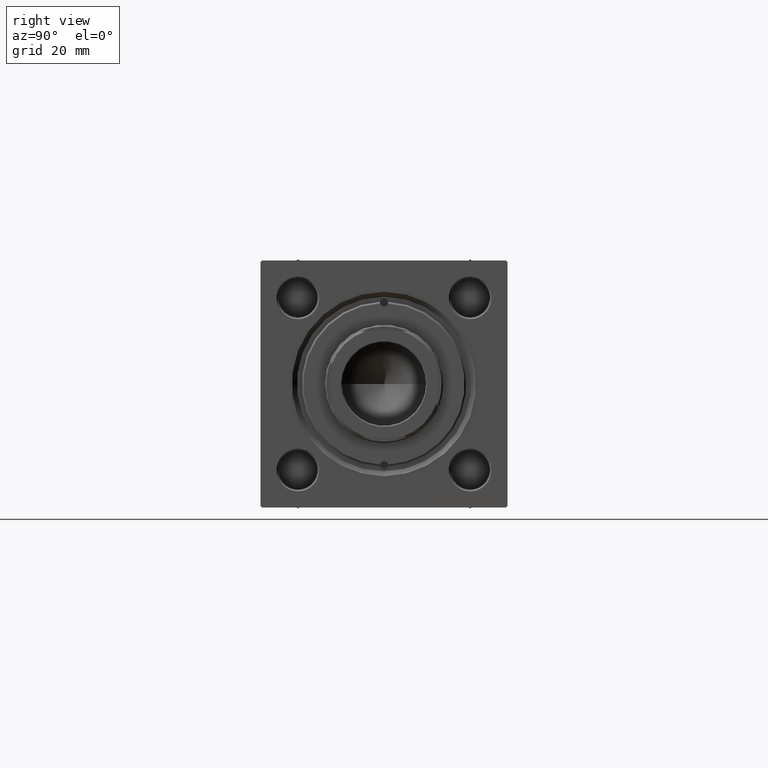
[diagram: clean part render]
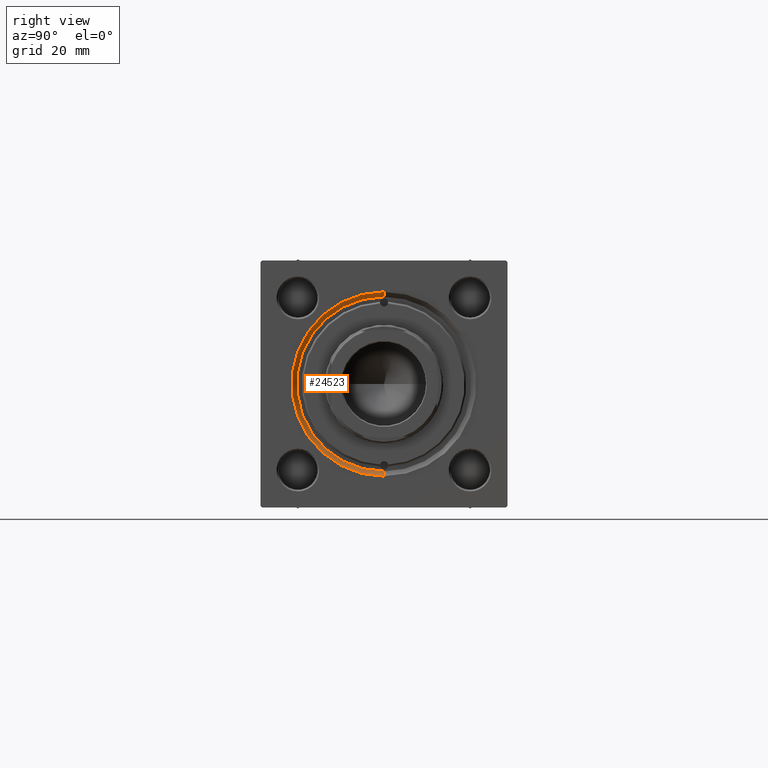
[diagram: same view with one face highlighted and labeled with its STEP entity id]
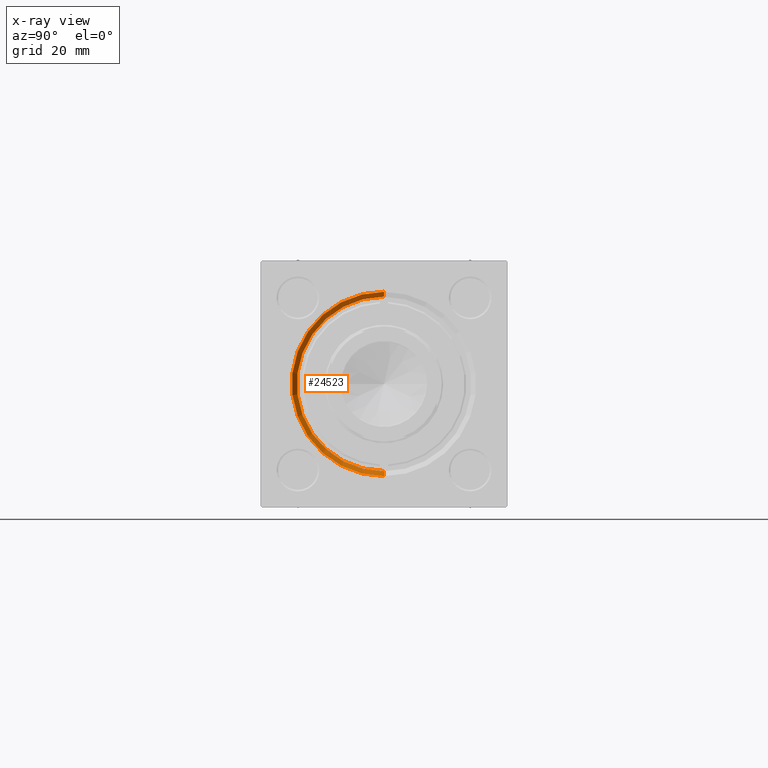
[diagram: x-ray of the same camera — body ghosted, the highlighted face saturated]
A machine part, right view. The second image highlights one B-rep face of the part: STEP entity #24523.
The next image is the same camera in x-ray: the body ghosted, the highlighted face saturated — about 0% of this face is hidden behind the body in this view.
In plain terms, the highlighted conical surface has half-angle 45 deg.
Its self-contained STEP definition (entity closure, byte-faithful):
#752 = EDGE_CURVE ( 'NONE', #27300, #35299, #3754, .T. ) ;
#2752 = EDGE_CURVE ( 'NONE', #3470, #35299, #39122, .T. ) ;
#3470 = VERTEX_POINT ( 'NONE', #42849 ) ;
#3754 = LINE ( 'NONE', #11887, #38248 ) ;
#5359 = CARTESIAN_POINT ( 'NONE',  ( 152.5000000000000568, 0.000000000000000000, 0.000000000000000000 ) ) ;
#6174 = AXIS2_PLACEMENT_3D ( 'NONE', #14530, #11210, #30107 ) ;
#9424 = DIRECTION ( 'NONE',  ( 1.000000000000000000, 0.000000000000000000, 0.000000000000000000 ) ) ;
#10391 = DIRECTION ( 'NONE',  ( 0.000000000000000000, 0.000000000000000000, 1.000000000000000000 ) ) ;
#11210 = DIRECTION ( 'NONE',  ( 1.000000000000000000, 0.000000000000000000, 0.000000000000000000 ) ) ;
#11887 = CARTESIAN_POINT ( 'NONE',  ( 152.5000000000000568, 3.245314017740486554E-15, 26.50000000000000355 ) ) ;
#11956 = CARTESIAN_POINT ( 'NONE',  ( 154.0000000000000000, 3.429011037612588881E-15, 27.99999999999999645 ) ) ;
#12908 = ORIENTED_EDGE ( 'NONE', *, *, #752, .T. ) ;
#13460 = CARTESIAN_POINT ( 'NONE',  ( 152.5000000000000568, 0.000000000000000000, -26.50000000000000355 ) ) ;
#14530 = CARTESIAN_POINT ( 'NONE',  ( 152.5000000000000568, 0.000000000000000000, 0.000000000000000000 ) ) ;
#15016 = ORIENTED_EDGE ( 'NONE', *, *, #24226, .F. ) ;
#15378 = AXIS2_PLACEMENT_3D ( 'NONE', #5359, #9424, #32643 ) ;
#15709 = CARTESIAN_POINT ( 'NONE',  ( 152.5000000000000568, 3.245314017740486554E-15, 26.50000000000000355 ) ) ;
#15991 = VERTEX_POINT ( 'NONE', #13460 ) ;
#19192 = LINE ( 'NONE', #42426, #25966 ) ;
#22026 = AXIS2_PLACEMENT_3D ( 'NONE', #25190, #22112, #10391 ) ;
#22112 = DIRECTION ( 'NONE',  ( -1.000000000000000000, -0.000000000000000000, 0.000000000000000000 ) ) ;
#24226 = EDGE_CURVE ( 'NONE', #15991, #3470, #19192, .T. ) ;
#24523 = ADVANCED_FACE ( 'NONE', ( #31901 ), #25177, .F. ) ;
#24787 = ORIENTED_EDGE ( 'NONE', *, *, #46987, .F. ) ;
#25177 = CONICAL_SURFACE ( 'NONE', #15378, 26.50000000000000355, 0.7853981633974644883 ) ;
#25190 = CARTESIAN_POINT ( 'NONE',  ( 154.0000000000000000, 0.000000000000000000, 0.000000000000000000 ) ) ;
#25966 = VECTOR ( 'NONE', #35040, 1000.000000000000114 ) ;
#27300 = VERTEX_POINT ( 'NONE', #15709 ) ;
#28156 = CIRCLE ( 'NONE', #6174, 26.50000000000000355 ) ;
#30107 = DIRECTION ( 'NONE',  ( 0.000000000000000000, 0.000000000000000000, 1.000000000000000000 ) ) ;
#31901 = FACE_OUTER_BOUND ( 'NONE', #47878, .T. ) ;
#32643 = DIRECTION ( 'NONE',  ( 0.000000000000000000, 0.000000000000000000, -1.000000000000000000 ) ) ;
#35040 = DIRECTION ( 'NONE',  ( 0.7071067811865361374, 0.000000000000000000, -0.7071067811865588970 ) ) ;
#35299 = VERTEX_POINT ( 'NONE', #11956 ) ;
#35564 = ORIENTED_EDGE ( 'NONE', *, *, #2752, .F. ) ;
#38248 = VECTOR ( 'NONE', #42515, 1000.000000000000114 ) ;
#39122 = CIRCLE ( 'NONE', #22026, 27.99999999999999645 ) ;
#42426 = CARTESIAN_POINT ( 'NONE',  ( 152.5000000000000568, 0.000000000000000000, -26.50000000000000355 ) ) ;
#42515 = DIRECTION ( 'NONE',  ( 0.7071067811865361374, 8.659560562355073374E-17, 0.7071067811865588970 ) ) ;
#42849 = CARTESIAN_POINT ( 'NONE',  ( 154.0000000000000000, 0.000000000000000000, -27.99999999999999645 ) ) ;
#46987 = EDGE_CURVE ( 'NONE', #27300, #15991, #28156, .T. ) ;
#47878 = EDGE_LOOP ( 'NONE', ( #24787, #12908, #35564, #15016 ) ) ;